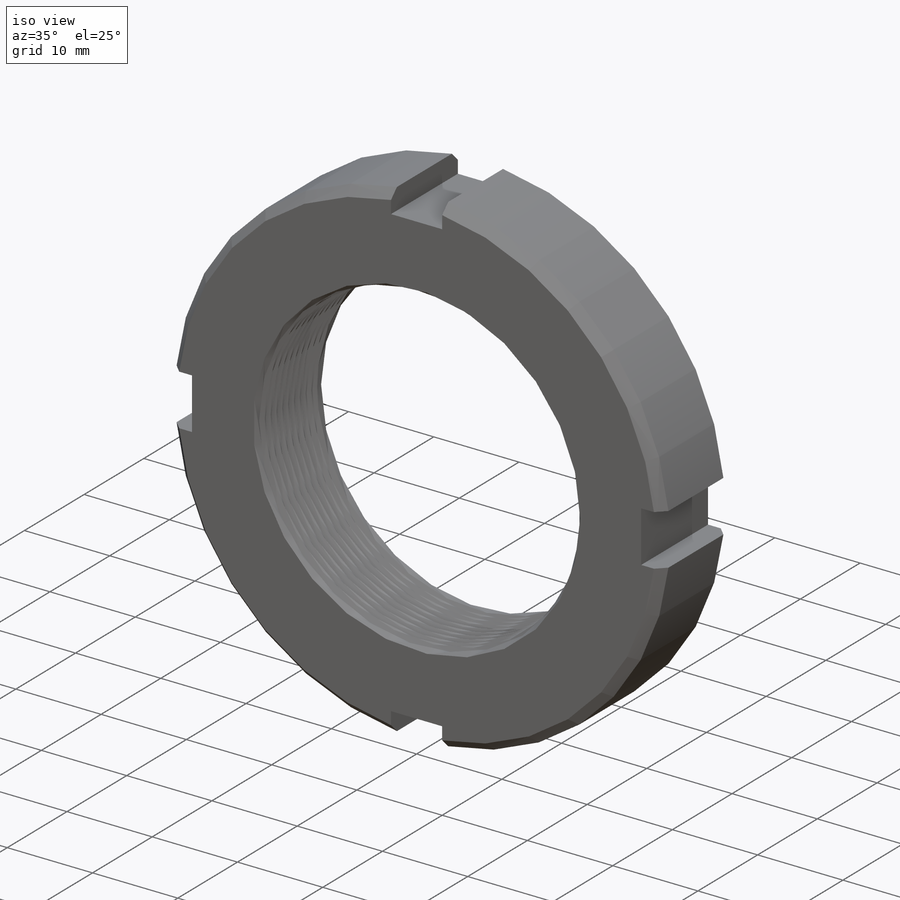
[diagram: iso view]
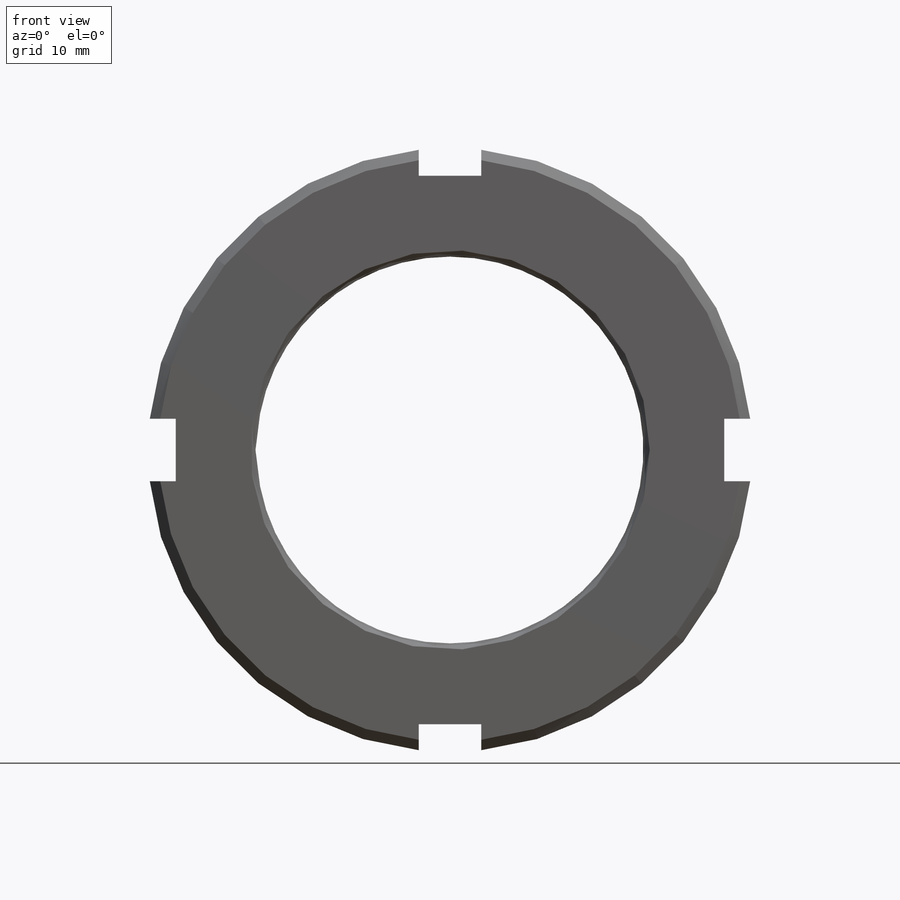
[diagram: front view]
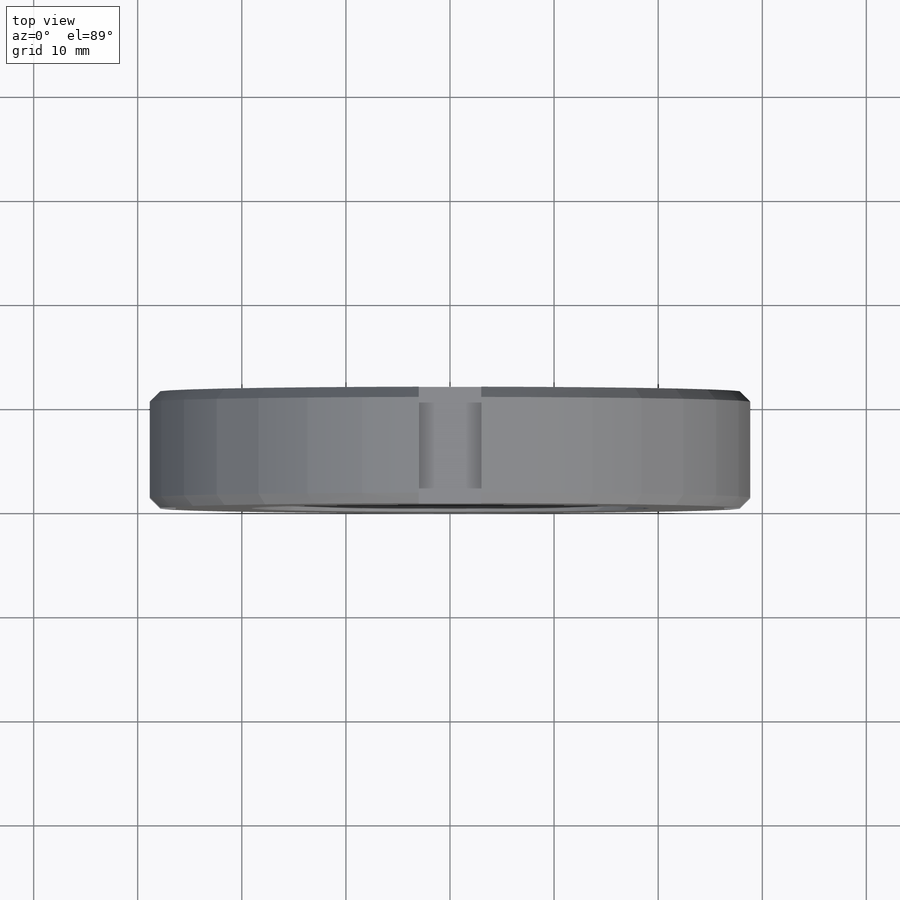
[diagram: top view]
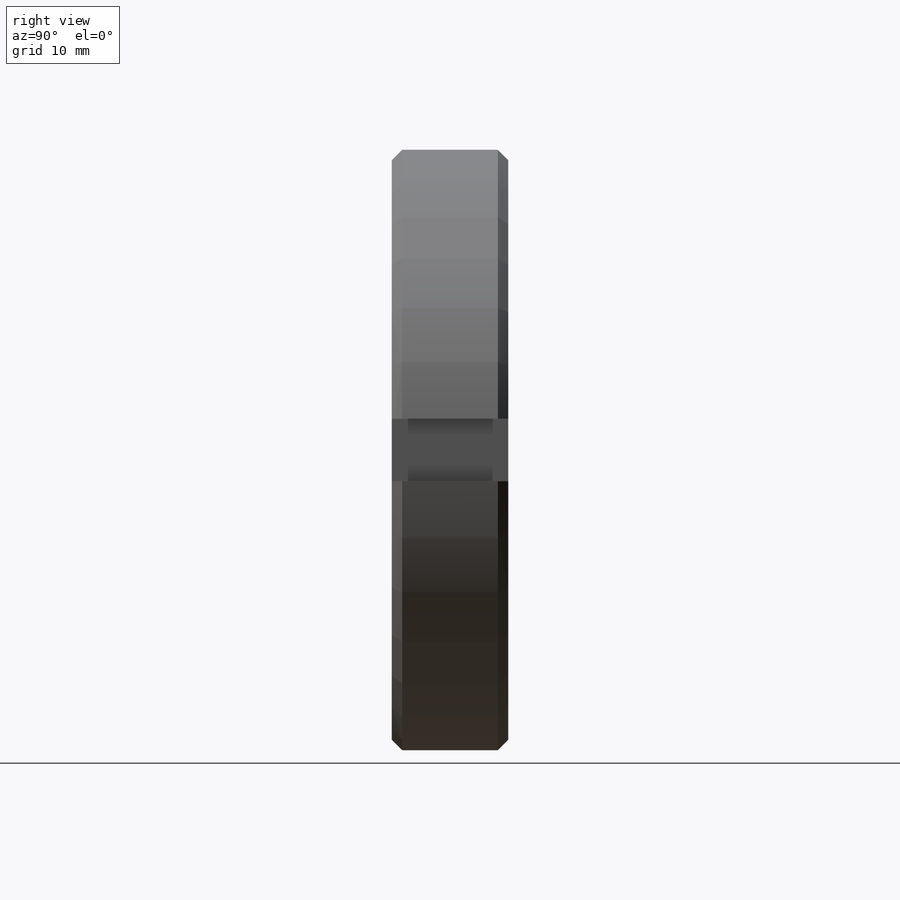
[diagram: right view]
SOLIDWORKS PART (.sldprt)
format: sldprt  version: not decoded by parser v0  size: 290,816 bytes
history: native  units: mm
features: sketch x4, cut_revolve x4, chamfer x2, cut_extrude x2, material x1, extrude x1, thread x1, pattern_circular x1, pattern_linear x1 (+15 scaffold rows collapsed; 1 parser-record rows omitted)
feature tree (33):
  parser-record x1  (decoder bookkeeping rows leaked as tree rows — omitted from the tree; the rows remain in map.json)
  scaffold x15  (default folders/planes/origin — collapsed)
  material  "材质 <未指定>"
  sketch  "Sketch2"  dims[dk=58.0mm]
  extrude  "BaseNut"  Depth=11.2mm m=11.2mm
  chamfer  "Chamfer1"  Distance=1mm Angle=45deg C=1mm
  sketch  "Sketch3"  dims[D1=37.376mm]
  cut_extrude  "Hole"  [1 undecoded]
  thread  "ThreadCosmetic1"  Diameter=39mm  [1 undecoded]
  chamfer  "EndChamfer"  Distance=0.5mm Angle=60deg C1=0.5mm
  sketch  "Sketch4"  dims[n=6.0mm t=2.5mm]
  cut_extrude  "SlotCut"  [1 undecoded]
  pattern_circular  "SlotPat"  Count=4 Angle=90deg n1=4
  sketch  "Sketch5"  dims[D1=0.812mm D2=37.376mm]
  cut_revolve  "Cut-Revolve10"  Angle=360deg
  pattern_linear  "LPattern10"  Count1=10 Count2=1 Spacing1=0.9744mm Spacing2=50mm
  cut_revolve  "ConfigurationName"  CopiedFlag=1  [1 undecoded]
  cut_revolve  "PartNumberID"  [1 undecoded]
  cut_revolve  "ConfigurationName"  CopiedFlag=0  [1 undecoded]
decode coverage: 13 of 16 modeling features carry decoded parameters
note: 6 parameter values undecoded
summary: no parameter record found for 5 features
note: suppression state not decoded; provenance and decode notes live in map.json
